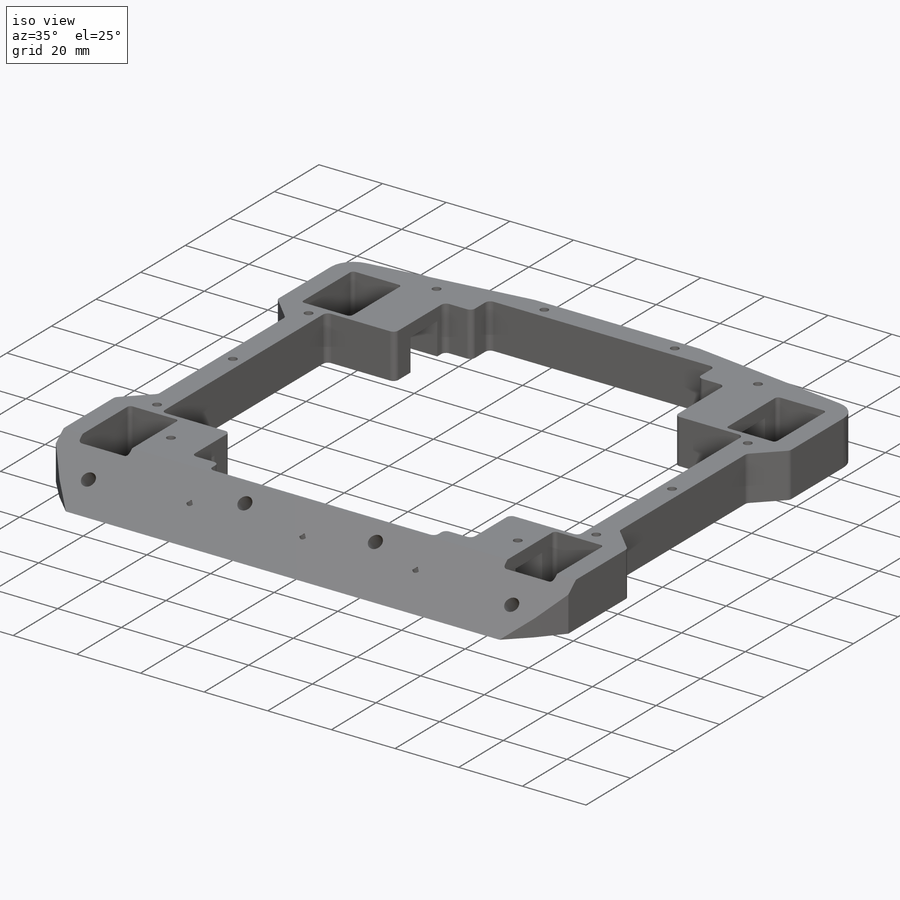
[diagram: iso view]
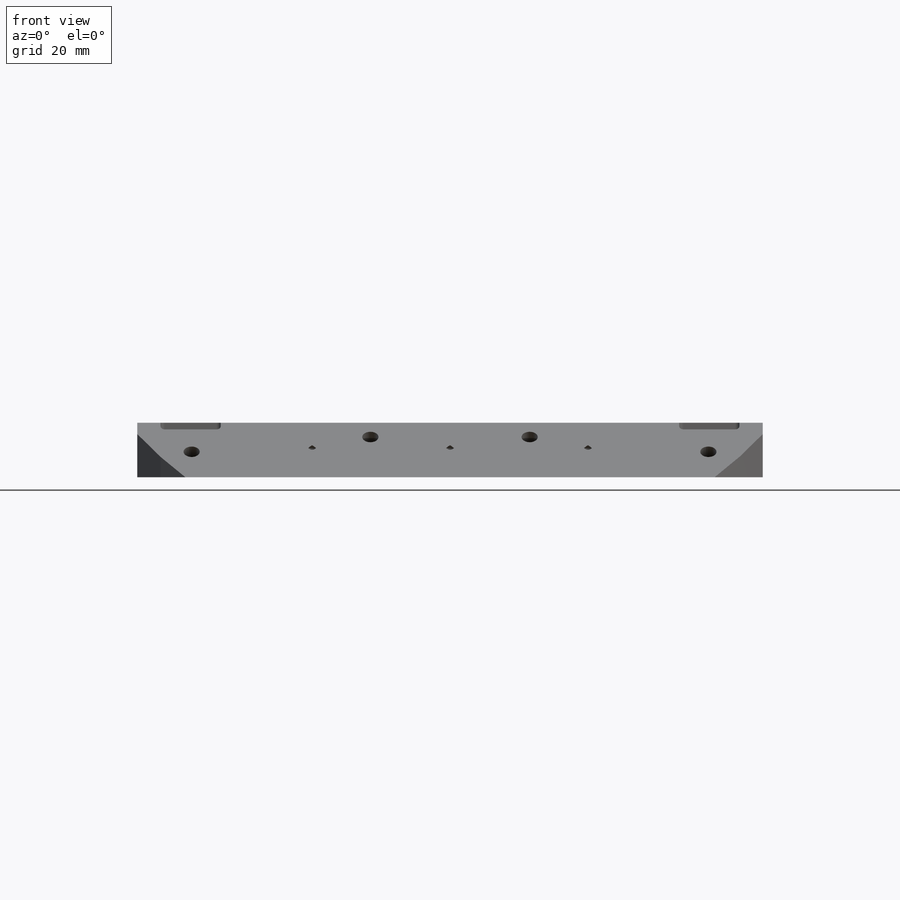
[diagram: front view]
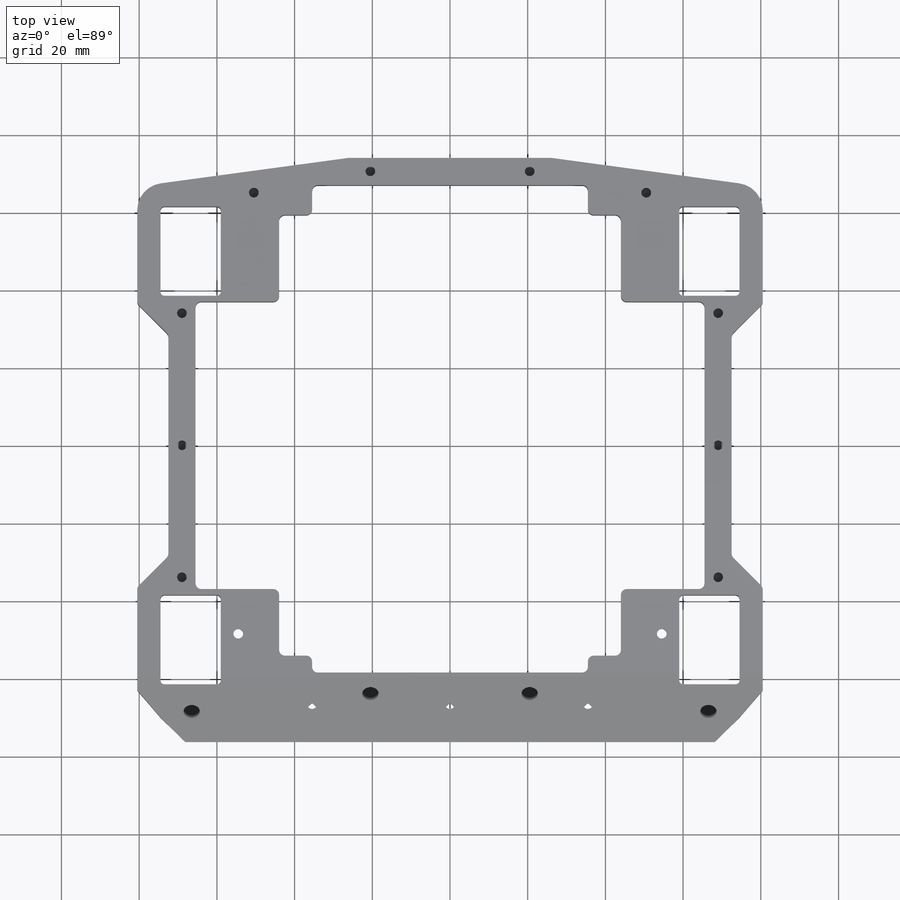
[diagram: top view]
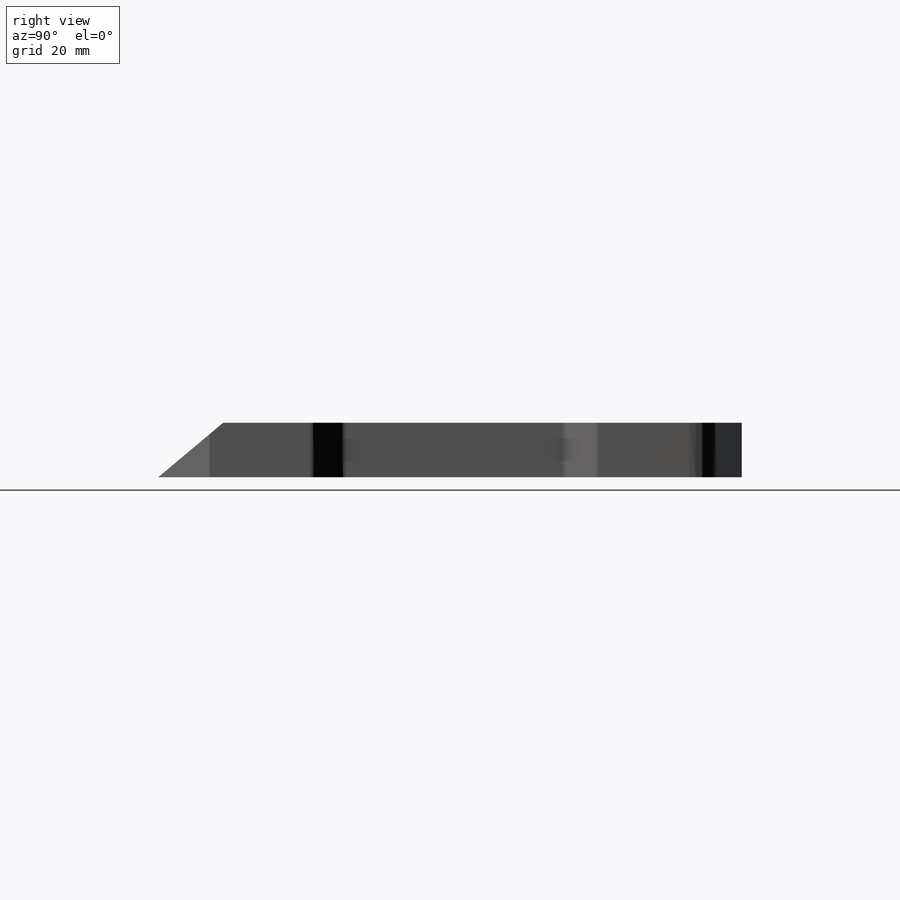
[diagram: right view]
SOLIDWORKS PART (.sldprt)
format: sldprt  version: not decoded by parser v0  size: 1,735,680 bytes
history: native  units: mm
features: thread x34, sketch x13, cut_extrude x6, hole x3, fillet x2, material x1, extrude x1 (+11 scaffold rows collapsed)
feature tree (71):
  scaffold x11  (default folders/planes/origin — collapsed)
  material  "7075-T6, Plate (SS)"
  sketch  "Sketch1"  dims[c1.D1=170.0mm c1.D2=161.0mm c1.D3=74.0mm c2.D1=80.75mm]
  extrude  "outline"  Depth=14mm
  sketch  "Sketch2"  dims[c1.D1=23.0mm c1.D2=15.5mm c1.D3=1.27mm c1.D4=5.0mm c1.D5=6.0mm c1.D6=131.0mm c1.D7=33.0mm c1.D8=52.0mm c1.D9=50.0mm c2.D3=33.0mm c2.D4=19.0mm c2.D5=12.0mm c2.D7=~10.699344mm c2.D10=67.0mm c2.D11=58.5mm c3.D7=17.5mm c3.D3=23.5mm c3.D5=9.5mm c3.D6=65.5mm c3.D12=71.0mm c4.D7=35.5mm c4.D5=11.0mm c4.D4=74.0mm c5.D5=112.0mm]
  cut_extrude  "thru-all"  [1 undecoded]
  sketch  "Sketch14"
  cut_extrude  "lazy extra"  [1 undecoded]
  sketch  "Sketch3"  dims[D1=12.0mm D2=7.0mm]
  cut_extrude  "motor huts"  Depth=10mm
  fillet  "wheel well"  Radius=1mm
  sketch  "Sketch5"  dims[c1.D1=7.0mm c1.D2=2.0mm c1.D3=23.0mm c1.D4=22.0mm c1.D5=23.0mm c1.D6=17.0mm c1.D7=52.0mm c2.D6=36.5mm c2.D5=23.0mm c2.D3=23.0mm]
  cut_extrude  "outer cutouts"  [1 undecoded]
  sketch  "Sketch13"
  cut_extrude  "Cut-Extrude1"  [1 undecoded]
  fillet  "fillet the rest"  Radius=1.5mm
  sketch  "Sketch4"  dims[c1.D1=~37.842756mm c2.D1=40.0deg c2.D2=1.0mm]
  cut_extrude  "wedge cut"  [1 undecoded]
  hole  "top screws"  Diameter=2.5mm Depth=6.5mm
  sketch  "Sketch7"  dims[c1.D1=2.5mm c1.D2=3.5mm c2.D1=11.5mm c2.D3=6.0mm c2.D4=3.0mm c2.D5=34.5mm c2.D6=3.5mm c3.D3=19.0mm c3.D7=4.0mm c3.D8=23.0mm c3.D9=3.5mm c3.D10=9.0mm c3.D11=60.0mm c3.D12=30.0mm c3.D2=11.5mm]
  sketch  "Sketch6"  dims[hole-wizard template sketch: 47 standard entries collapsed; hole parameters kept: c15.Tap Drill Depth=6.5mm c15.D3=~14.816244mm c15.Drill Angle=118.0deg]
  thread  "Hole Thread2"  Diameter=5mm  [1 undecoded]
  thread  "Hole Thread5"  Diameter=5mm  [1 undecoded]
  thread  "Hole Thread7"  Diameter=5mm  [1 undecoded]
  thread  "Hole Thread8"  Diameter=5mm  [1 undecoded]
  thread  "Hole Thread9"  Diameter=5mm  [1 undecoded]
  thread  "Hole Thread10"  Diameter=5mm  [1 undecoded]
  thread  "Hole Thread23"  Diameter=5mm  [1 undecoded]
  thread  "Hole Thread25"  Diameter=5mm  [1 undecoded]
  thread  "Hole Thread57"  Diameter=5mm  [1 undecoded]
  thread  "Hole Thread58"  Diameter=5mm  [1 undecoded]
  thread  "Hole Thread59"  Diameter=5mm  [1 undecoded]
  thread  "Hole Thread60"  Diameter=5mm  [1 undecoded]
  hole  "bottom screws"  Diameter=2.5mm Depth=7.5mm
  sketch  "Sketch9"  dims[c1.D1=3.5mm c1.D2=22.5mm c1.D3=40.0mm c1.D4=25.0mm c1.D5=29.5mm c1.D6=6.0mm c1.D7=3.0mm c1.D8=3.5mm c1.D9=13.0mm c1.D10=7.0mm c1.D11=3.5mm c1.D12=40.0mm c1.D13=70.0mm c2.D3=8.0mm c2.D5=45.0mm]
  sketch  "Sketch8"  dims[hole-wizard template sketch: 50 standard entries collapsed; hole parameters above]
  thread  "Hole Thread26"  Diameter=6mm  [1 undecoded]
  thread  "Hole Thread30"  Diameter=6mm  [1 undecoded]
  thread  "Hole Thread32"  Diameter=6mm  [1 undecoded]
  thread  "Hole Thread33"  Diameter=6mm  [1 undecoded]
  thread  "Hole Thread34"  Diameter=6mm  [1 undecoded]
  thread  "Hole Thread35"  Diameter=6mm  [1 undecoded]
  thread  "Hole Thread36"  Diameter=6mm  [1 undecoded]
  thread  "Hole Thread37"  Diameter=6mm  [1 undecoded]
  thread  "Hole Thread38"  Diameter=6mm  [1 undecoded]
  thread  "Hole Thread41"  Diameter=6mm  [1 undecoded]
  thread  "Hole Thread43"  Diameter=6mm  [1 undecoded]
  thread  "Hole Thread44"  Diameter=6mm  [1 undecoded]
  thread  "Hole Thread45"  Diameter=6mm  [1 undecoded]
  thread  "Hole Thread49"  Diameter=6mm  [1 undecoded]
  thread  "Hole Thread51"  Diameter=6mm  [1 undecoded]
  thread  "Hole Thread52"  Diameter=6mm  [1 undecoded]
  thread  "Hole Thread53"  Diameter=6mm  [1 undecoded]
  thread  "Hole Thread55"  Diameter=6mm  [1 undecoded]
  hole  "M5x0.8 Tapped Hole1"  Diameter=4.2mm Depth=7.4mm
  sketch  "Sketch12"  dims[D1=14.0mm D2=9.0mm D3=7.0mm D4=60.0mm D5=60.0mm D6=14.0mm]
  sketch  "Sketch10"  dims[hole-wizard template sketch: 47 standard entries collapsed; hole parameters kept: c15.Tap Drill Depth=7.4mm c15.D3=~14.816244mm c15.Drill Angle=118.0deg]
  thread  "Hole Thread61"  Diameter=5mm  [1 undecoded]
  thread  "Hole Thread62"  Diameter=5mm  [1 undecoded]
  thread  "Hole Thread63"  Diameter=5mm  [1 undecoded]
  thread  "Hole Thread64"  Diameter=5mm  [1 undecoded]
decode coverage: 52 of 59 modeling features carry decoded parameters
note: ~ marks probable driven/reference dimensions
note: 39 parameter values undecoded
summary: no parameter record found for 5 features
note: suppression state not decoded; provenance and decode notes live in map.json
